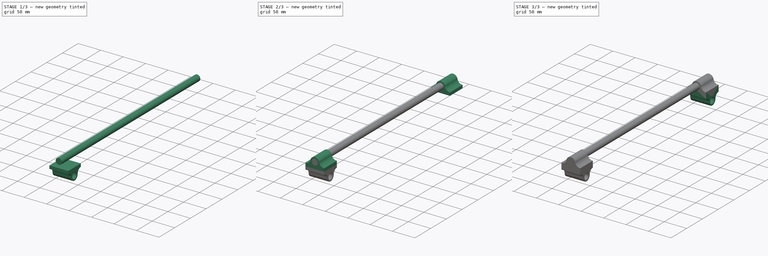
[diagram: build sequence overview — one tinted view per stage of 3, left to right]
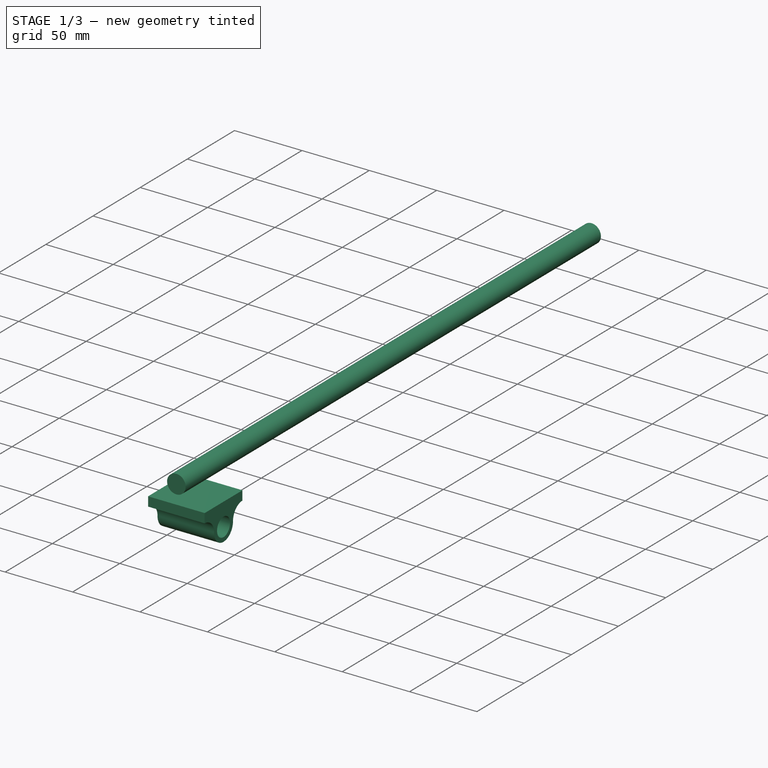
[diagram: stage 1 of 3 — iso view after this stage's code; geometry added in this stage tinted green]
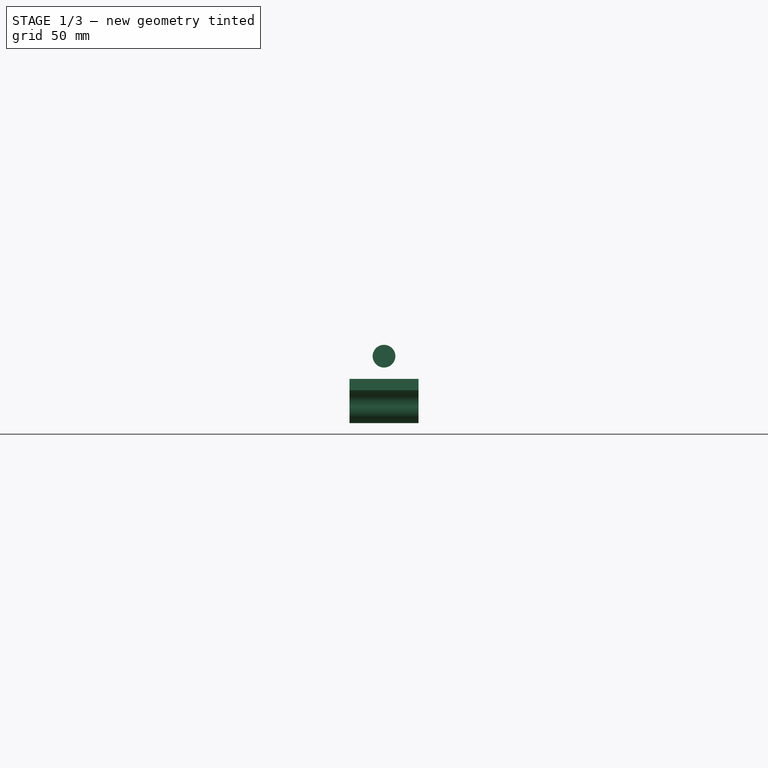
[diagram: stage 1 of 3 — front view after this stage's code; geometry added in this stage tinted green]
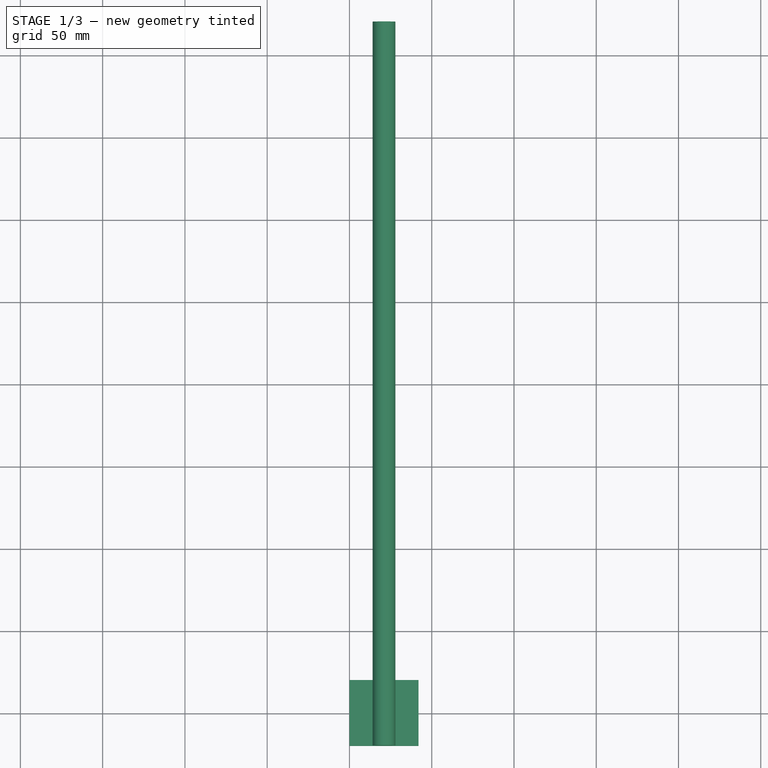
[diagram: stage 1 of 3 — top view after this stage's code; geometry added in this stage tinted green]
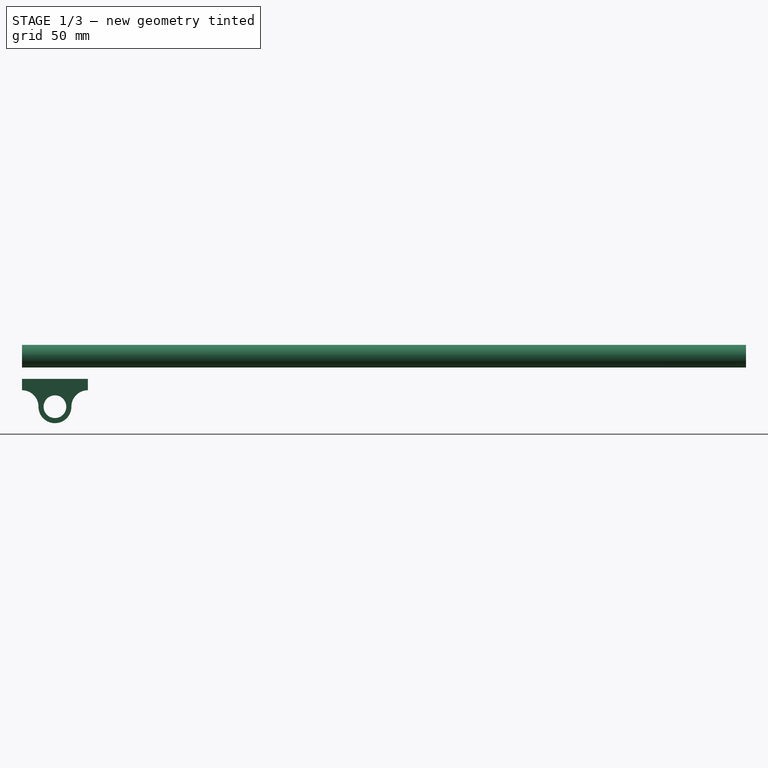
[diagram: stage 1 of 3 — right view after this stage's code; geometry added in this stage tinted green]
FCSTD DOCUMENT  (FreeCAD 0.19R)
Label: PlotterBeam
License: All rights reserved
LicenseURL: http://en.wikipedia.org/wiki/All_rights_reserved
objects: Sketcher::SketchObject×5, PartDesign::Pad×5, PartDesign::Body×5, App::DocumentObjectGroup×3, PartDesign::CoordinateSystem×2, App::FeaturePython×1, Part::MultiFuse×1, App::Part×1
note: 23 computed .brp shape members not serialized (recipe doc carries the construction recipe); baked Part::Feature solids carry a one-line shape summary decoded from their .brp

FEATURE [PartDesign::Body] Body005  label="Y_Axis_Socket2"
  Group = -> [Sketch015,Pad005]
  Origin = -> Origin005
  Tip = -> Pad005
FEATURE [Sketcher::SketchObject] Sketch016
  FullyConstrained = true
  Placement = pos=(0,-20,0) rot=(1,0,0;1.5708rad)
  sketch-geometry (1):
    g0: Circle CenterX=21 CenterY=30.7 CenterZ=0 NormalX=0 NormalY=0 NormalZ=1 AngleXU=0 Radius=6.9
  constraints (3):
    c: Radius(g0) = 6.9
    c: DistanceX(g-1,g0) = 21
    c: DistanceY(g-1,g0) = 30.7
FEATURE [PartDesign::Pad] Pad006
  Direction = (1,1,1)
  Length = 440
  Length2 = 100
  Placement = pos=(0,-20,0) rot=(1,0,0;1.5708rad)
  Profile = -> Sketch016
  Refine = true
  Reversed = true
  Type = 0
FEATURE [PartDesign::Body] Body006  label="Y_Axis_Rail"
  Group = -> [Sketch016,Pad006]
  Origin = -> Origin006
  Tip = -> Pad006
FEATURE [PartDesign::Pad] Pad001
  Direction = (1,1,1)
  Length = 42
  Length2 = 100
  Placement = pos=(0,0,0) rot=(0.57735,0.57735,0.57735;2.0944rad)
  Profile = -> Sketch011
  Refine = true
  Type = 0
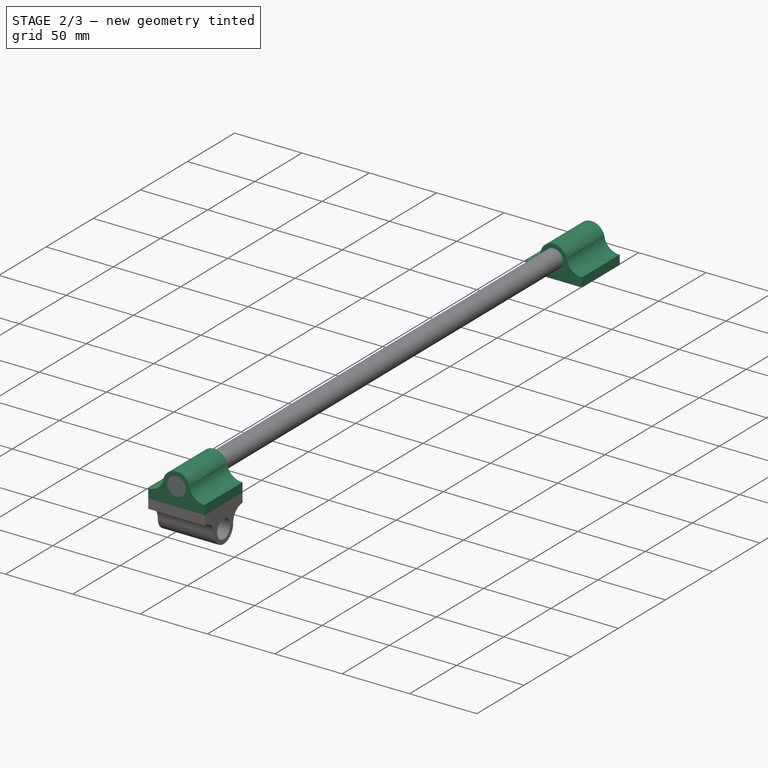
[diagram: stage 2 of 3 — iso view after this stage's code; geometry added in this stage tinted green]
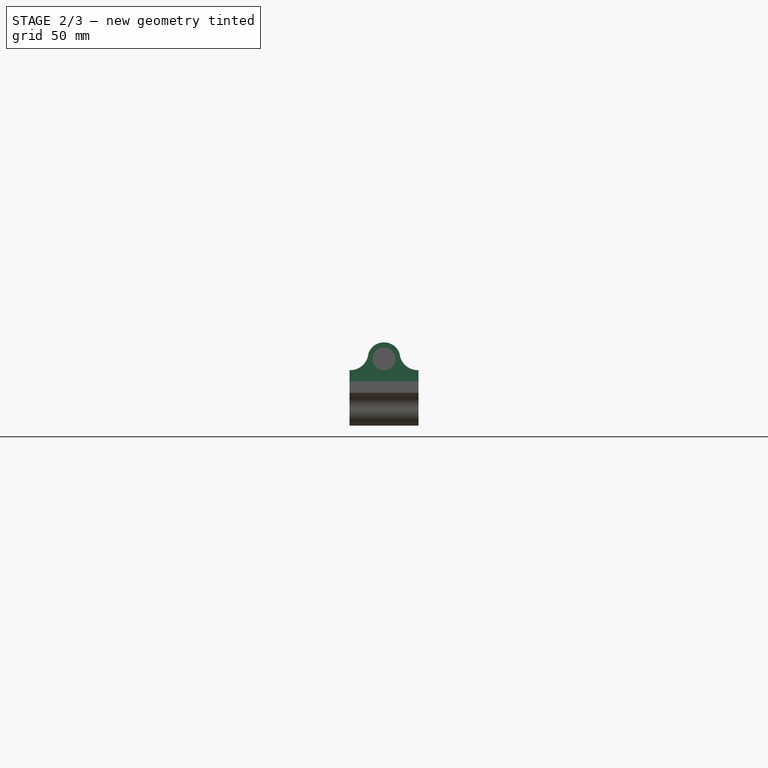
[diagram: stage 2 of 3 — front view after this stage's code; geometry added in this stage tinted green]
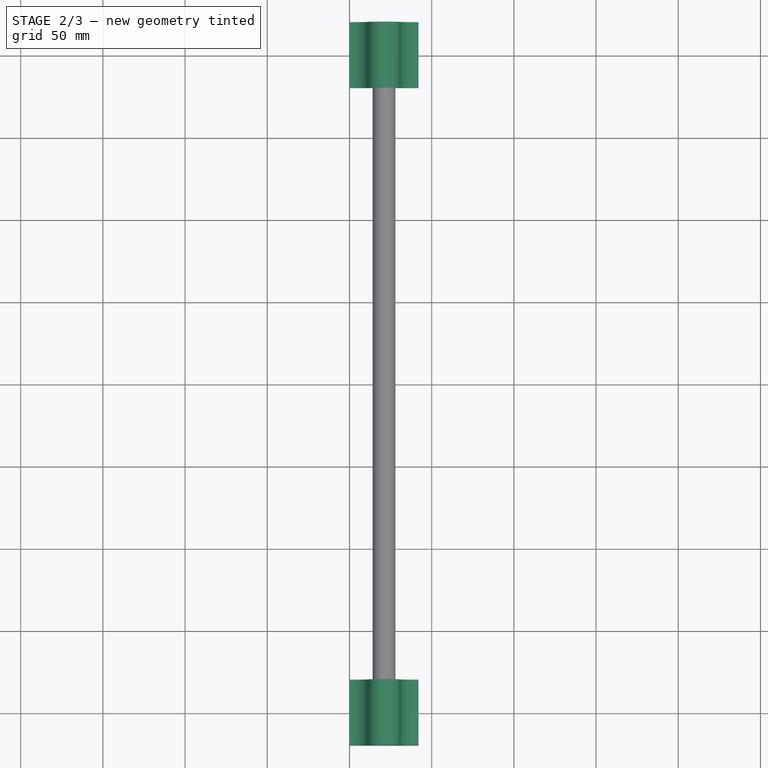
[diagram: stage 2 of 3 — top view after this stage's code; geometry added in this stage tinted green]
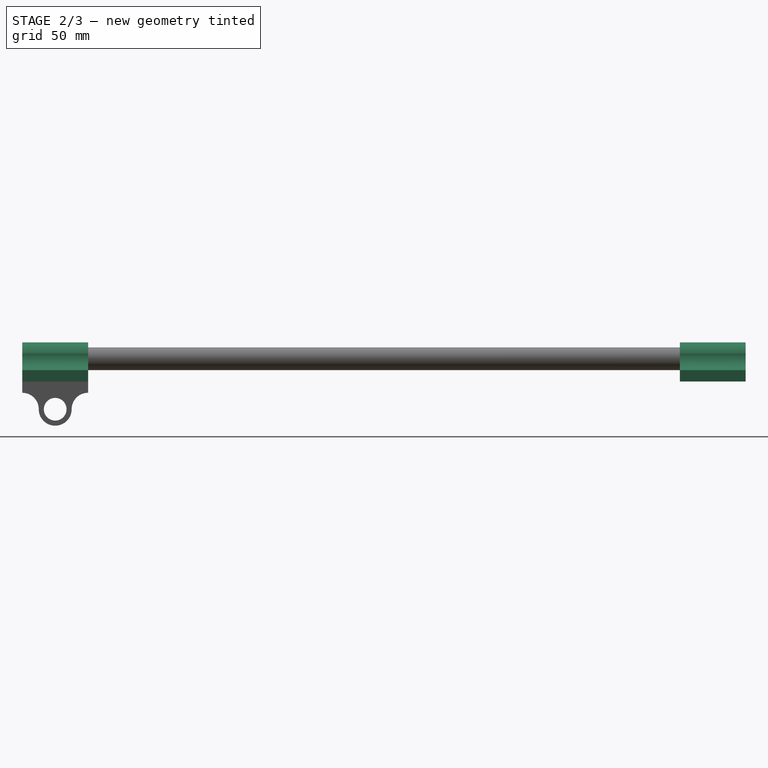
[diagram: stage 2 of 3 — right view after this stage's code; geometry added in this stage tinted green]
FEATURE [PartDesign::Body] Body002  label="X_Axis_Sled2"
  Group = -> [Sketch012,Pad002]
  Origin = -> Origin002
  Tip = -> Pad002
FEATURE [Sketcher::SketchObject] Sketch014
  FullyConstrained = true
  Placement = pos=(0,0,0) rot=(1,0,0;1.5708rad)
  expr: Constraints[12] = 23.8 + 6.9
  expr: Constraints[6] = 16.9 + 6.9
  sketch-geometry (9):
    g0: LineSegment StartX=-2.8e-15 StartY=23.8 StartZ=0 EndX=-2.8e-15 EndY=16.9 EndZ=0
    g1: LineSegment StartX=-2.8e-15 StartY=16.9 StartZ=0 EndX=42 EndY=16.9 EndZ=0
    g2: LineSegment StartX=42 StartY=16.9 StartZ=0 EndX=42 EndY=23.8 EndZ=0
    g3: ArcOfCircle CenterX=0.536994 CenterY=34.7869 CenterZ=0 NormalX=0 NormalY=0 NormalZ=1 AngleXU=0 Radius=11 StartAngle=4.66355 EndAngle=6.19335
    g4: ArcOfCircle CenterX=21 CenterY=30.7 CenterZ=0 NormalX=0 NormalY=0 NormalZ=1 AngleXU=0 Radius=10 StartAngle=0.315193 EndAngle=2.8264
    g5: ArcOfCircle CenterX=41.463 CenterY=34.7869 CenterZ=0 NormalX=0 NormalY=0 NormalZ=1 AngleXU=0 Radius=11 StartAngle=3.23143 EndAngle=4.76123
    g6: LineSegment StartX=21 StartY=52.63 StartZ=0 EndX=21 EndY=19.82 EndZ=0
    g7: LineSegment StartX=-7.22 StartY=33.8 StartZ=0 EndX=53.79 EndY=33.8 EndZ=0
    g8: Circle CenterX=21 CenterY=30.7 CenterZ=0 NormalX=0 NormalY=0 NormalZ=1 AngleXU=0 Radius=6.9
  constraints (29):
    c: PointOnObject(g0,g-2)
    c: Vertical(g0)
    c: Coincident(g0,g1)
    c: Horizontal(g1)
    c: Coincident(g1,g2)
    c: Vertical(g2)
    c: DistanceY(g-1,g0) = 23.8
    c: DistanceY(g0,g0) = 6.9
    c: Coincident(g3,g0)
    c: Coincident(g4,g3)
    c: Coincident(g5,g4)
    c: Radius(g3) = 11
    c: DistanceY(g4) = 30.7
    c: Coincident(g2,g5)
    c: Equal(g2,g0)
    c: DistanceX(g1,g1) = 42
    c: DistanceX(g-1,g6) = 21
    c: Symmetric(g3,g4,g6)
    c: Horizontal(g7)
    c: DistanceY(g-1,g7) = 33.8
    c: PointOnObject(g3,g7)
    c: Symmetric(g3,g5,g6)
    c: Radius(g4) = 10
    c: DistanceX(g-2,g7) = 53.79
    c: DistanceY(g-1,g6) = 19.82
    c: Distance(g6) = 32.81
    c: DistanceX(g7,g7) = 61.01
    c: Coincident(g8,g4)
    c: Radius(g8) = 6.9
FEATURE [PartDesign::Pad] Pad004
  Direction = (1,1,1)
  Length = 40
  Length2 = 100
  Midplane = true
  Placement = pos=(0,0,0) rot=(1,0,0;1.5708rad)
  Profile = -> Sketch014
  Refine = true
  Type = 0
FEATURE [PartDesign::Body] Body004  label="Y_Axis_Socket1"
  Group = -> [Sketch014,Pad004]
  Origin = -> Origin004
  Tip = -> Pad004
FEATURE [Sketcher::SketchObject] Sketch015
  FullyConstrained = true
  Placement = pos=(0,400,0) rot=(1,0,0;1.5708rad)
  expr: Constraints[6] = 16.9 + 6.9
  expr: Constraints[12] = 23.8 + 6.9
  sketch-geometry (9):
    g0: LineSegment StartX=-2.8e-15 StartY=23.8 StartZ=0 EndX=-2.8e-15 EndY=16.9 EndZ=0
    g1: LineSegment StartX=-2.8e-15 StartY=16.9 StartZ=0 EndX=42 EndY=16.9 EndZ=0
    g2: LineSegment StartX=42 StartY=16.9 StartZ=0 EndX=42 EndY=23.8 EndZ=0
    g3: ArcOfCircle CenterX=0.536994 CenterY=34.7869 CenterZ=0 NormalX=0 NormalY=0 NormalZ=1 AngleXU=0 Radius=11 StartAngle=4.66355 EndAngle=6.19335
    g4: ArcOfCircle CenterX=21 CenterY=30.7 CenterZ=0 NormalX=0 NormalY=0 NormalZ=1 AngleXU=0 Radius=10 StartAngle=0.315193 EndAngle=2.8264
    g5: ArcOfCircle CenterX=41.463 CenterY=34.7869 CenterZ=0 NormalX=0 NormalY=0 NormalZ=1 AngleXU=0 Radius=11 StartAngle=3.23143 EndAngle=4.76123
    g6: LineSegment StartX=21 StartY=52.63 StartZ=0 EndX=21 EndY=19.82 EndZ=0
    g7: LineSegment StartX=-7.22 StartY=33.8 StartZ=0 EndX=53.79 EndY=33.8 EndZ=0
    g8: Circle CenterX=21 CenterY=30.7 CenterZ=0 NormalX=0 NormalY=0 NormalZ=1 AngleXU=0 Radius=6.9
  constraints (29):
    c: PointOnObject(g0,g-2)
    c: Vertical(g0)
    c: Coincident(g0,g1)
    c: Horizontal(g1)
    c: Coincident(g1,g2)
    c: Vertical(g2)
    c: DistanceY(g-1,g0) = 23.8
    c: DistanceY(g0,g0) = 6.9
    c: Coincident(g3,g0)
    c: Coincident(g4,g3)
    c: Coincident(g5,g4)
    c: Radius(g3) = 11
    c: DistanceY(g4) = 30.7
    c: Coincident(g2,g5)
    c: Equal(g2,g0)
    c: DistanceX(g1,g1) = 42
    c: DistanceX(g-1,g6) = 21
    c: Symmetric(g3,g4,g6)
    c: Horizontal(g7)
    c: DistanceY(g-1,g7) = 33.8
    c: PointOnObject(g3,g7)
    c: Symmetric(g3,g5,g6)
    c: Radius(g4) = 10
    c: DistanceX(g-2,g7) = 53.79
    c: DistanceY(g-1,g6) = 19.82
    c: Distance(g6) = 32.81
    c: DistanceX(g7,g7) = 61.01
    c: Coincident(g8,g4)
    c: Radius(g8) = 6.9
FEATURE [PartDesign::Pad] Pad005
  Direction = (1,1,1)
  Length = 40
  Length2 = 100
  Midplane = true
  Placement = pos=(0,400,0) rot=(1,0,0;1.5708rad)
  Profile = -> Sketch015
  Refine = true
  Type = 0
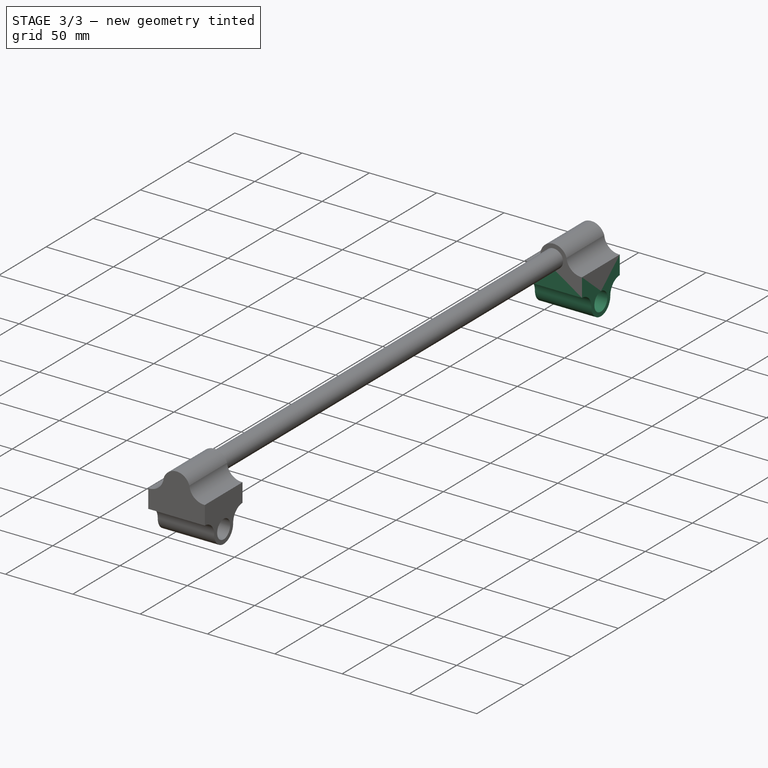
[diagram: stage 3 of 3 — iso view after this stage's code; geometry added in this stage tinted green]
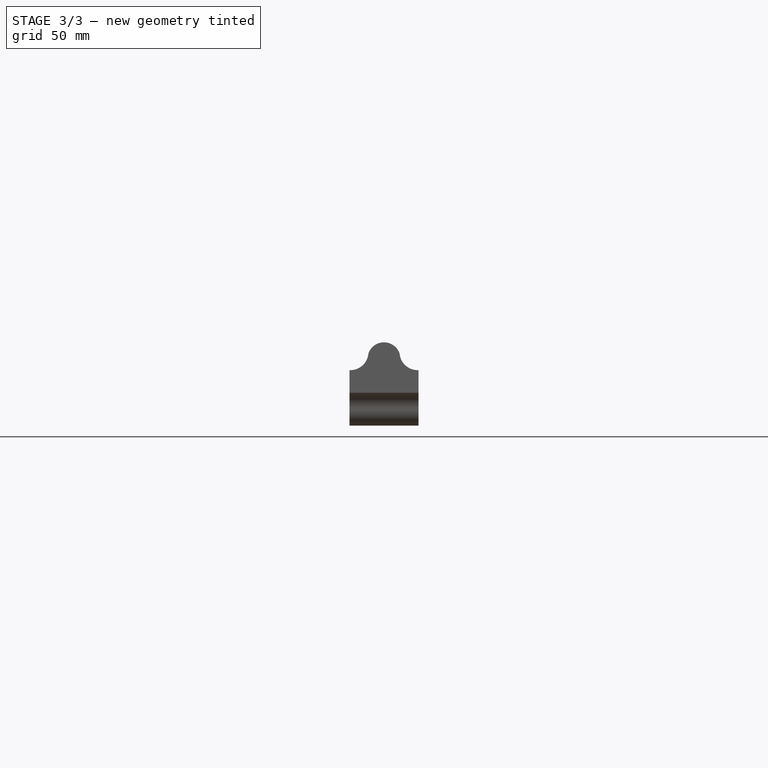
[diagram: stage 3 of 3 — front view after this stage's code; geometry added in this stage tinted green]
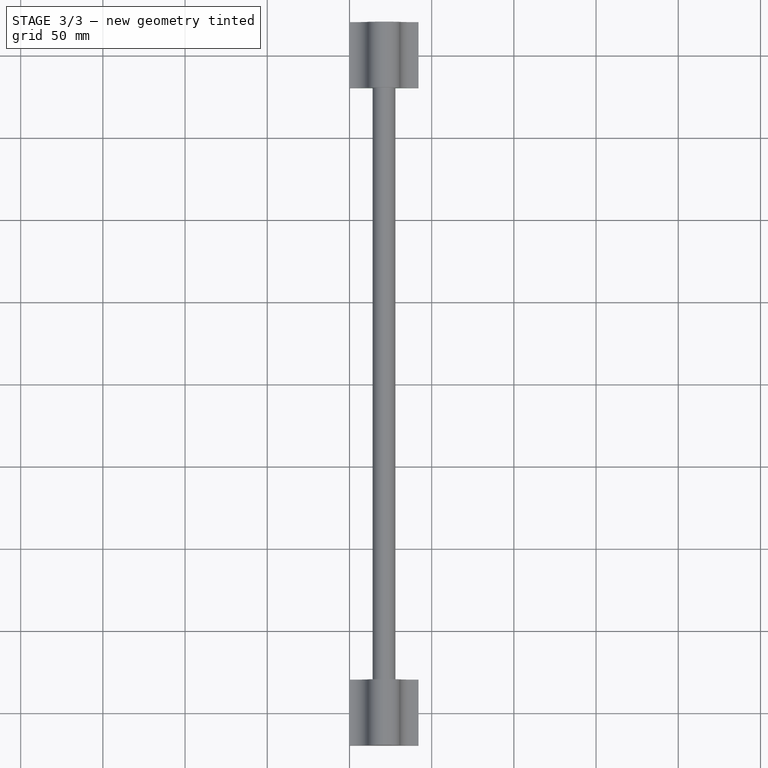
[diagram: stage 3 of 3 — top view after this stage's code; geometry added in this stage tinted green]
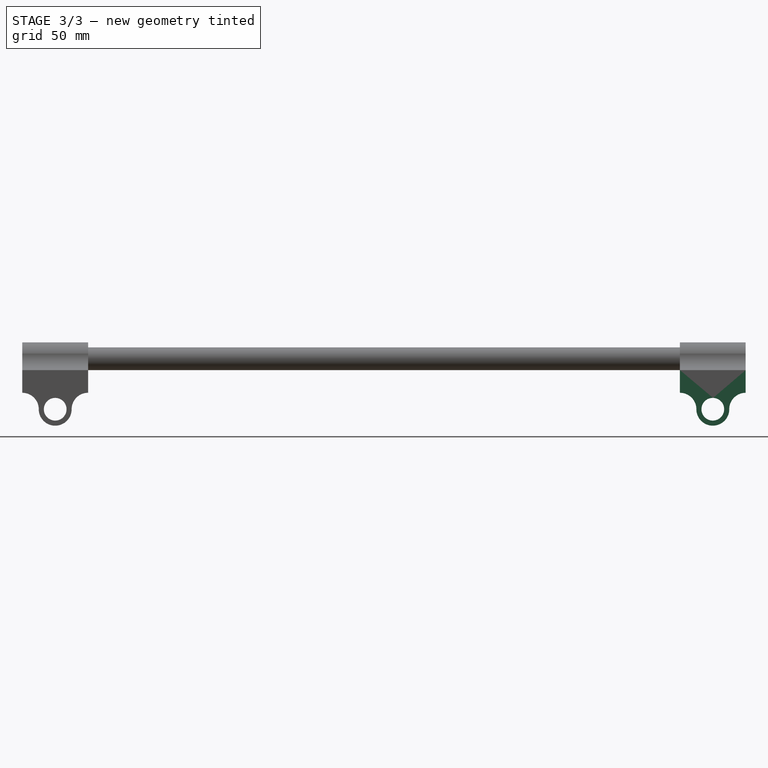
[diagram: stage 3 of 3 — right view after this stage's code; geometry added in this stage tinted green]
FEATURE [App::DocumentObjectGroup] Parts
FEATURE [PartDesign::CoordinateSystem] LCS_Origin
  AttacherType = Attacher::AttachEngine3D
  AttachmentOffset = pos=(-236,0,0) rot=(0,0,1;0rad)
  MapMode = 2
  Placement = pos=(-236,0,0) rot=(0,0,1;0rad)
  Support = -> [X_Axis]
FEATURE [App::DocumentObjectGroup] Constraints
FEATURE [App::FeaturePython] Variables  # WARN: FeaturePython — macro-defined, semantics opaque (R4)
  Type = App::PropertyContainer
FEATURE [App::DocumentObjectGroup] Configurations
FEATURE [Sketcher::SketchObject] Sketch011
  FullyConstrained = true
  Placement = pos=(0,0,0) rot=(0.57735,0.57735,0.57735;2.0944rad)
  sketch-geometry (7):
    g0: Circle CenterX=0 CenterY=0 CenterZ=0 NormalX=0 NormalY=0 NormalZ=1 AngleXU=0 Radius=6.9
    g1: LineSegment StartX=-20 StartY=16.9 StartZ=0 EndX=20 EndY=16.9 EndZ=0
    g2: LineSegment StartX=20 StartY=16.9 StartZ=0 EndX=20 EndY=10 EndZ=0
    g3: ArcOfCircle CenterX=20 CenterY=-2.6e-15 CenterZ=0 NormalX=0 NormalY=0 NormalZ=1 AngleXU=0 Radius=10 StartAngle=1.5708 EndAngle=3.14159
    g4: ArcOfCircle CenterX=4e-16 CenterY=5.56859e-07 CenterZ=0 NormalX=0 NormalY=0 NormalZ=1 AngleXU=0 Radius=10 StartAngle=3.14159 EndAngle=6.28319
    g5: ArcOfCircle CenterX=-20 CenterY=-2.4e-15 CenterZ=0 NormalX=0 NormalY=0 NormalZ=1 AngleXU=0 Radius=10 StartAngle=2e-16 EndAngle=1.5708
    g6: LineSegment StartX=-20 StartY=10 StartZ=0 EndX=-20 EndY=16.9 EndZ=0
  constraints (21):
    c: Coincident(g0,g-1)
    c: Radius(g0) = 6.9
    c: Coincident(g1,g2)
    c: Vertical(g2)
    c: DistanceX(g1,g1) = 40
    c: DistanceY(g2,g2) = 6.9
    c: DistanceY(g0,g1) = 16.9
    c: Symmetric(g1,g1,g-2)
    c: Coincident(g3,g2)
    c: PointOnObject(g3,g-1)
    c: Radius(g3) = 10
    c: Coincident(g4,g3)
    c: Radius(g4) = 10
    c: Symmetric(g4,g3,g-2)
    c: DistanceX(g4,g3) = 20
    c: Coincident(g5,g4)
    c: Radius(g5) = 10
    c: Coincident(g6,g5)
    c: Coincident(g6,g1)
    c: Vertical(g6)
    c: Equal(g6,g2)
FEATURE [Sketcher::SketchObject] Sketch012
  FullyConstrained = true
  Placement = pos=(0,400,0) rot=(0.57735,0.57735,0.57735;2.0944rad)
  sketch-geometry (7):
    g0: Circle CenterX=0 CenterY=0 CenterZ=0 NormalX=0 NormalY=0 NormalZ=1 AngleXU=0 Radius=6.9
    g1: LineSegment StartX=-20 StartY=16.9 StartZ=0 EndX=20 EndY=16.9 EndZ=0
    g2: LineSegment StartX=20 StartY=16.9 StartZ=0 EndX=20 EndY=10 EndZ=0
    g3: ArcOfCircle CenterX=20 CenterY=-2.6e-15 CenterZ=0 NormalX=0 NormalY=0 NormalZ=1 AngleXU=0 Radius=10 StartAngle=1.5708 EndAngle=3.14159
    g4: ArcOfCircle CenterX=4e-16 CenterY=5.56859e-07 CenterZ=0 NormalX=0 NormalY=0 NormalZ=1 AngleXU=0 Radius=10 StartAngle=3.14159 EndAngle=6.28319
    g5: ArcOfCircle CenterX=-20 CenterY=-2.4e-15 CenterZ=0 NormalX=0 NormalY=0 NormalZ=1 AngleXU=0 Radius=10 StartAngle=2e-16 EndAngle=1.5708
    g6: LineSegment StartX=-20 StartY=10 StartZ=0 EndX=-20 EndY=16.9 EndZ=0
  constraints (21):
    c: Coincident(g0,g-1)
    c: Radius(g0) = 6.9
    c: Coincident(g1,g2)
    c: Vertical(g2)
    c: DistanceX(g1,g1) = 40
    c: DistanceY(g2,g2) = 6.9
    c: DistanceY(g0,g1) = 16.9
    c: Symmetric(g1,g1,g-2)
    c: Coincident(g3,g2)
    c: PointOnObject(g3,g-1)
    c: Radius(g3) = 10
    c: Coincident(g4,g3)
    c: Radius(g4) = 10
    c: Symmetric(g4,g3,g-2)
    c: DistanceX(g4,g3) = 20
    c: Coincident(g5,g4)
    c: Radius(g5) = 10
    c: Coincident(g6,g5)
    c: Coincident(g6,g1)
    c: Vertical(g6)
    c: Equal(g6,g2)
FEATURE [PartDesign::Pad] Pad002
  Direction = (1,1,1)
  Length = 42
  Length2 = 100
  Placement = pos=(0,400,0) rot=(0.57735,0.57735,0.57735;2.0944rad)
  Profile = -> Sketch012
  Refine = true
  Type = 0
FEATURE [PartDesign::Body] Body001  label="X_Axis_Sled1"
  Group = -> [Sketch011,Pad001]
  Origin = -> Origin001
  Tip = -> Pad001
FEATURE [Part::MultiFuse] Fusion  label="Y_Rail"
  Refine = true
  Shapes = -> [Body006,Body001,Body002,Body004,Body005]
FEATURE [PartDesign::CoordinateSystem] LCS_1
  AttacherType = Attacher::AttachEngine3D
  AttachmentOffset = pos=(0,0,0) rot=(-0.57735,0.57735,-0.57735;2.0944rad)
  MapMode = 11
  Placement = pos=(21,20,30.7) rot=(0,0,1;0rad)
  Support = -> [Fusion]
FEATURE [App::Part] Model
  AssemblyType = Part::Link
  Group = -> [LCS_Origin,Constraints,Variables,Configurations,Body005,Body006,Body002,Body004,Body001,Fusion,LCS_1]
  Origin = -> Origin
  Type = Assembly
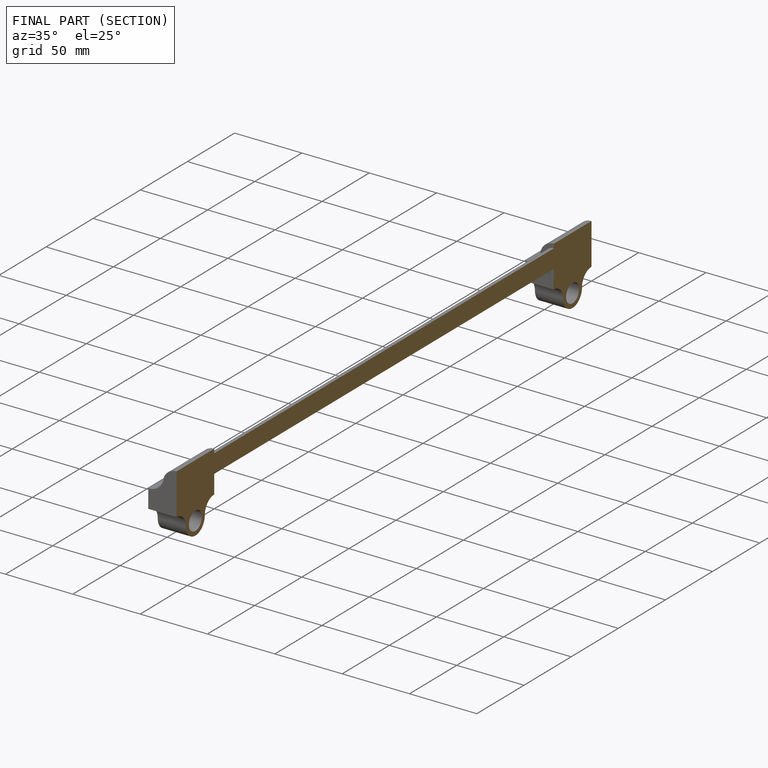
[diagram: finished part — half-section view (interior)]
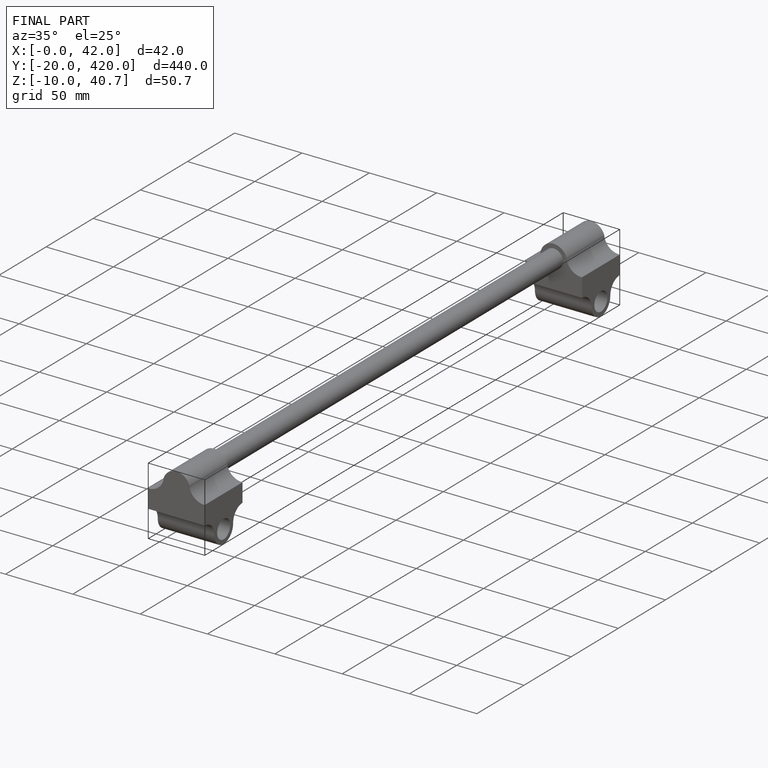
[diagram: finished part — iso view with bounding-box wireframe]
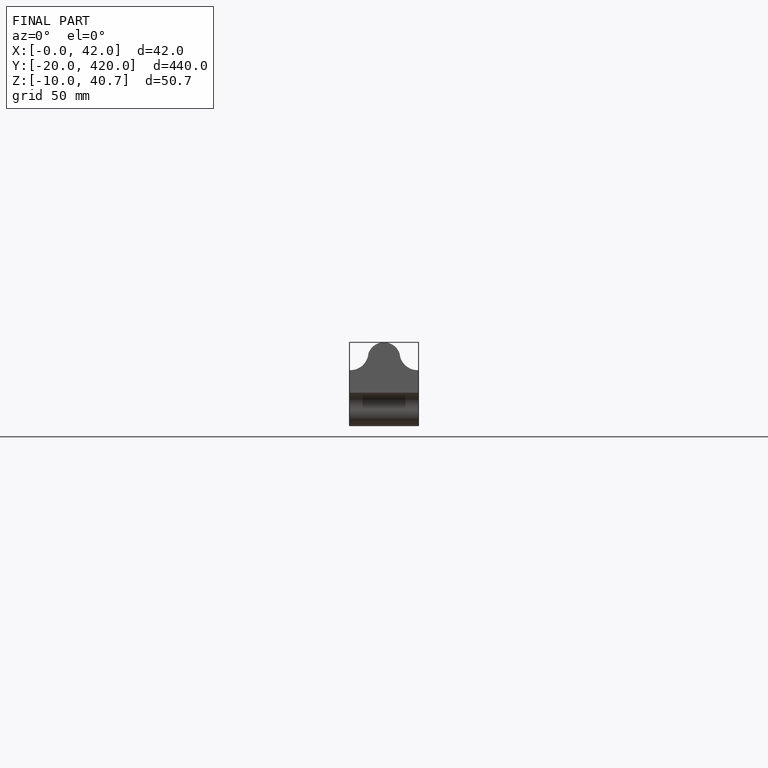
[diagram: finished part — front view with bounding-box wireframe]
